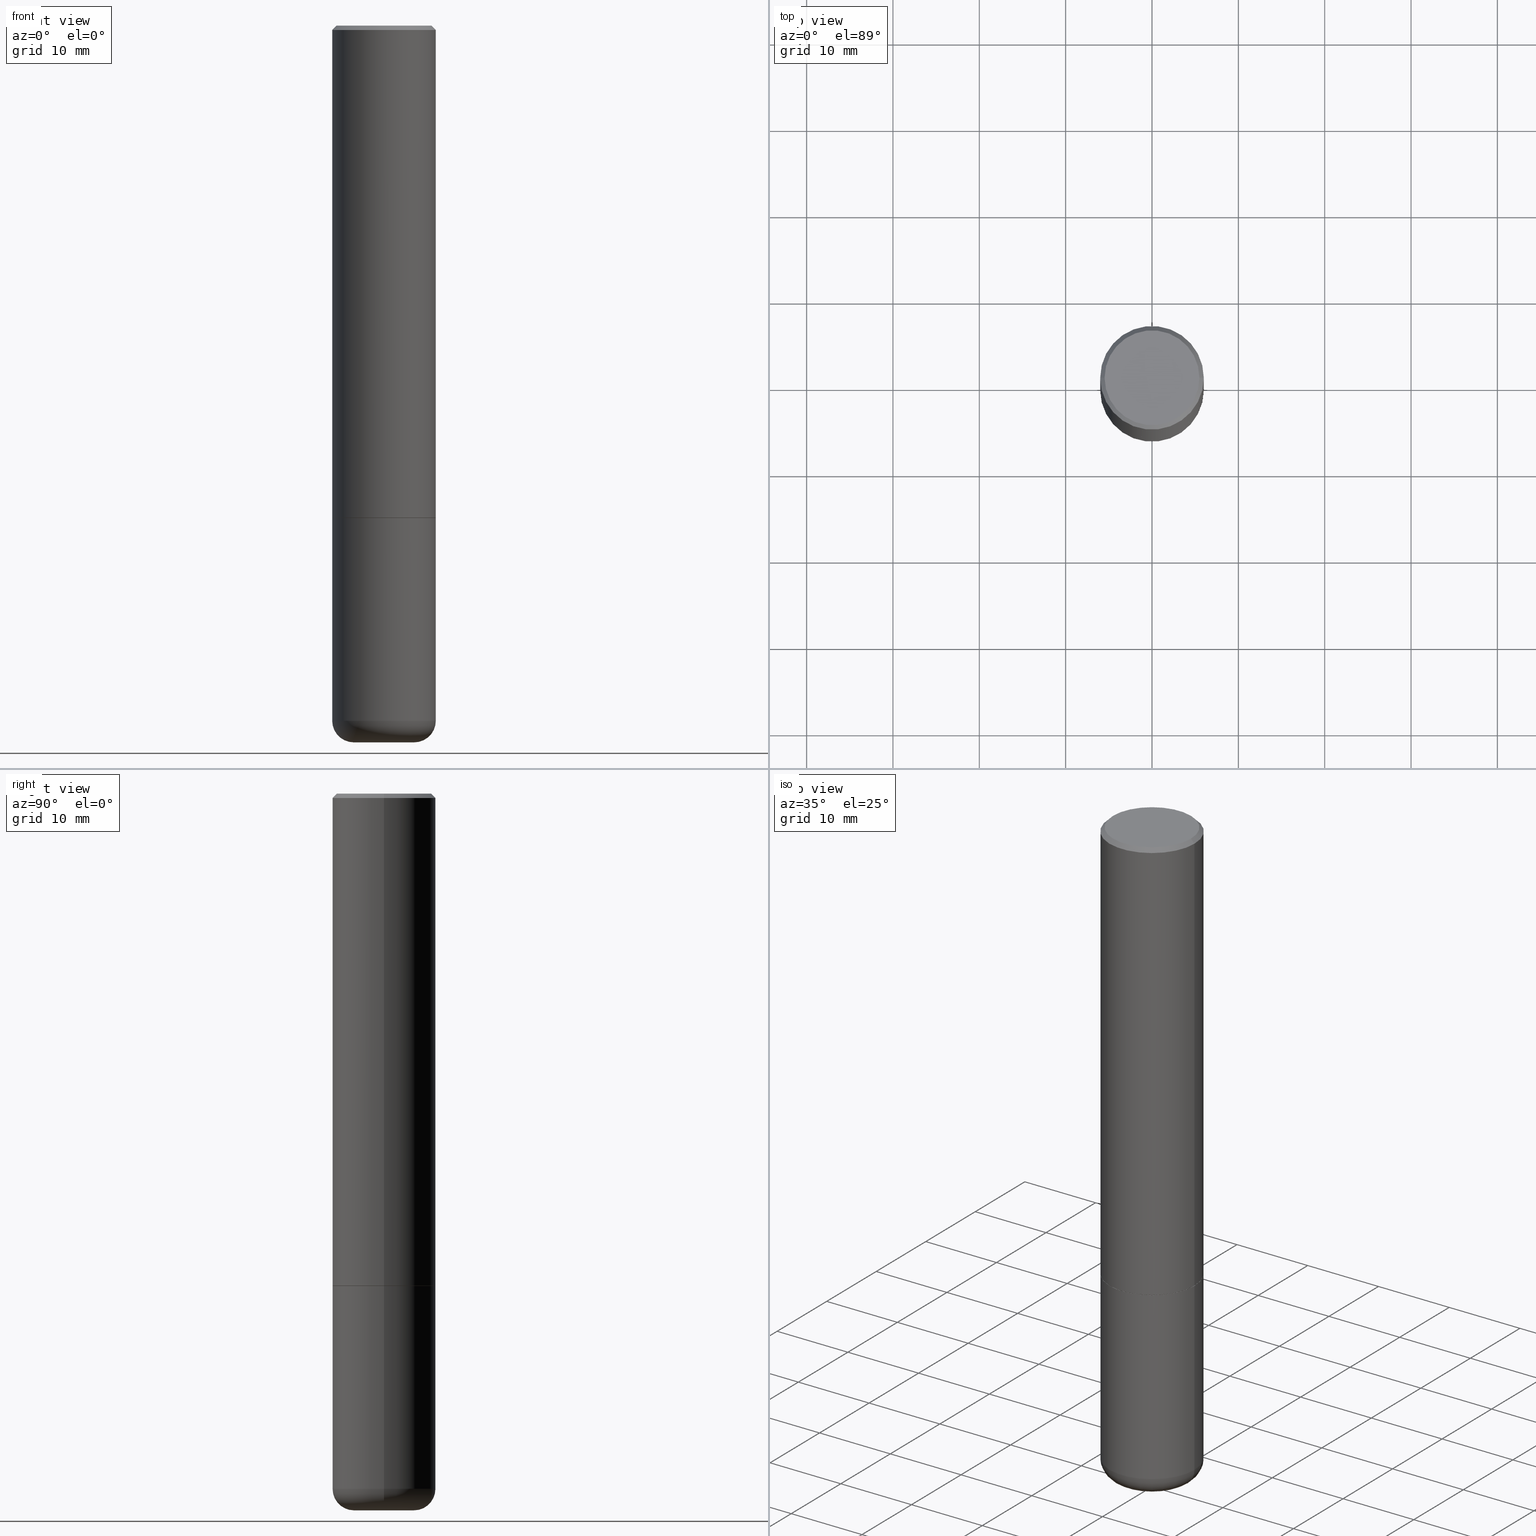
[diagram: canonical four-view strip — front | top / right | iso, engineering-drawing reading convention]
A machine part, canonical four-view strip (front | top / right | iso — engineering-drawing reading convention). The complete STEP part file that produces these views, byte-faithful:
ISO-10303-21;
HEADER;
FILE_DESCRIPTION (( 'STEP AP203' ),
    '1' );
FILE_NAME ('47022.STEP',
    '2024-03-05T12:10:26',
    ( '' ),
    ( '' ),
    'SwSTEP 2.0',
    'SolidWorks 2023',
    '' );
FILE_SCHEMA (( 'CONFIG_CONTROL_DESIGN' ));
ENDSEC;

DATA;
#1 = CLOSED_SHELL ( 'NONE', ( #223, #403, #206, #256, #60, #384, #265, #82 ) ) ;
#2 = CARTESIAN_POINT ( 'NONE',  ( -0.2351999999999999924, -6.158738303641923763E-15, -2.244099999999999984 ) ) ;
#3 = AXIS2_PLACEMENT_3D ( 'NONE', #93, #347, #292 ) ;
#4 = FACE_OUTER_BOUND ( 'NONE', #275, .T. ) ;
#5 = DIRECTION ( 'NONE',  ( -1.000000000000000000, 7.105427357601009747E-15, 0.000000000000000000 ) ) ;
#6 = EDGE_CURVE ( 'NONE', #20, #370, #293, .T. ) ;
#7 = FACE_OUTER_BOUND ( 'NONE', #298, .T. ) ;
#8 = CARTESIAN_POINT ( 'NONE',  ( 0.2161999999999998368, -1.586759460484351002E-15, 1.451294246634248118E-16 ) ) ;
#9 = ORIENTED_EDGE ( 'NONE', *, *, #218, .T. ) ;
#10 = AXIS2_PLACEMENT_3D ( 'NONE', #132, #353, #321 ) ;
#11 = LOCAL_TIME ( 7, 10, 26.00000000000000000, #192 ) ;
#12 = DIRECTION ( 'NONE',  ( 2.438088387897960049E-29, -3.491481338843145188E-15, -1.000000000000000000 ) ) ;
#13 = APPLICATION_CONTEXT ( 'configuration controlled 3d designs of mechanical parts and assemblies' ) ;
#14 = PLANE ( 'NONE',  #103 ) ;
#15 = ORIENTED_EDGE ( 'NONE', *, *, #279, .T. ) ;
#16 = CARTESIAN_POINT ( 'NONE',  ( 5.487876547960065873E-29, -7.835233272497903917E-15, -2.244100000000000428 ) ) ;
#17 = EDGE_LOOP ( 'NONE', ( #309, #172, #205, #86 ) ) ;
#18 = CONICAL_SURFACE ( 'NONE', #234, 0.2351999999999999924, 0.7853981633976873100 ) ;
#19 =( NAMED_UNIT ( * ) SI_UNIT ( $, .STERADIAN. ) SOLID_ANGLE_UNIT ( ) );
#20 = VERTEX_POINT ( 'NONE', #84 ) ;
#21 = COORDINATED_UNIVERSAL_TIME_OFFSET ( 5, 0, .BEHIND. ) ;
#22 = ORIENTED_EDGE ( 'NONE', *, *, #331, .F. ) ;
#23 = DATE_AND_TIME ( #306, #58 ) ;
#24 = DIRECTION ( 'NONE',  ( -2.445468806185136597E-29, 3.491481338843145583E-15, 1.000000000000000000 ) ) ;
#25 = PRODUCT ( '47022', '47022', '', ( #148 ) ) ;
#26 = VECTOR ( 'NONE', #316, 39.37007874015748143 ) ;
#27 = EDGE_CURVE ( 'NONE', #37, #336, #387, .T. ) ;
#28 = CARTESIAN_POINT ( 'NONE',  ( 4.890937612370285420E-31, -6.982962677686308865E-17, -0.02000000000000005246 ) ) ;
#29 = APPROVAL ( #409, 'UNSPECIFIED' ) ;
#30 = CONICAL_SURFACE ( 'NONE', #400, 0.2361999999999999933, 0.7853981633974473908 ) ;
#31 = DIRECTION ( 'NONE',  ( 1.000000000000000000, -6.982962677686266711E-15, 4.876176775795936353E-29 ) ) ;
#32 = LINE ( 'NONE', #94, #129 ) ;
#33 = DIRECTION ( 'NONE',  ( -1.000000000000000000, 6.982962677686266711E-15, 0.000000000000000000 ) ) ;
#34 = EDGE_CURVE ( 'NONE', #76, #248, #207, .T. ) ;
#35 = CARTESIAN_POINT ( 'NONE',  ( 5.487876547960065873E-29, -7.835233272497903917E-15, -2.244100000000000428 ) ) ;
#36 = VECTOR ( 'NONE', #229, 39.37007874015748143 ) ;
#37 = VERTEX_POINT ( 'NONE', #411 ) ;
#38 = DIRECTION ( 'NONE',  ( -1.000000000000000000, 6.982962677686265922E-15, -4.876176775795935793E-29 ) ) ;
#39 = ORIENTED_EDGE ( 'NONE', *, *, #34, .T. ) ;
#40 = PLANE ( 'NONE',  #356 ) ;
#41 = EDGE_CURVE ( 'NONE', #370, #20, #268, .T. ) ;
#42 = CARTESIAN_POINT ( 'NONE',  ( -0.1378000000000000058, -9.908617773195273284E-15, -3.267700000000000937 ) ) ;
#43 = ORIENTED_EDGE ( 'NONE', *, *, #34, .F. ) ;
#44 = AXIS2_PLACEMENT_3D ( 'NONE', #224, #232, #197 ) ;
#45 = CYLINDRICAL_SURFACE ( 'NONE', #215, 0.2362000000000001321 ) ;
#46 = ORIENTED_EDGE ( 'NONE', *, *, #346, .F. ) ;
#47 = CARTESIAN_POINT ( 'NONE',  ( -3.549094808739746881E-45, 5.067166779293519988E-31, 1.451294246634139896E-16 ) ) ;
#48 = VERTEX_POINT ( 'NONE', #92 ) ;
#49 = PERSON_AND_ORGANIZATION_ROLE ( 'creator' ) ;
#50 = ORIENTED_EDGE ( 'NONE', *, *, #346, .T. ) ;
#51 = AXIS2_PLACEMENT_3D ( 'NONE', #235, #296, #200 ) ;
#52 =( NAMED_UNIT ( * ) PLANE_ANGLE_UNIT ( ) SI_UNIT ( $, .RADIAN. ) );
#53 = EDGE_LOOP ( 'NONE', ( #402, #149 ) ) ;
#54 = CARTESIAN_POINT ( 'NONE',  ( 7.991058417971172834E-29, -1.140911357093774960E-14, -3.267700000000000937 ) ) ;
#55 = DIRECTION ( 'NONE',  ( 1.000000000000000000, -6.982962677686266711E-15, 4.881916136609865378E-29 ) ) ;
#56 = PERSON_AND_ORGANIZATION ( #196, #357 ) ;
#57 = AXIS2_PLACEMENT_3D ( 'NONE', #210, #114, #202 ) ;
#58 = LOCAL_TIME ( 7, 10, 26.00000000000000000, #181 ) ;
#59 = DATE_AND_TIME ( #249, #287 ) ;
#60 = ADVANCED_FACE ( 'NONE', ( #4 ), #334, .T. ) ;
#61 = CC_DESIGN_PERSON_AND_ORGANIZATION_ASSIGNMENT ( #311, #49, ( #318 ) ) ;
#62 = DIRECTION ( 'NONE',  ( 7.105427357601001859E-15, 1.000000000000000000, -3.491481338843145583E-15 ) ) ;
#63 = CARTESIAN_POINT ( 'NONE',  ( -0.2361999999999999933, -7.772090597981385734E-15, -2.244100000000000428 ) ) ;
#64 = CIRCLE ( 'NONE', #380, 0.2351999999999999924 ) ;
#65 = DIRECTION ( 'NONE',  ( -2.445468806185136877E-29, 3.491481338843145188E-15, 1.000000000000000000 ) ) ;
#66 = CARTESIAN_POINT ( 'NONE',  ( 0.2361999999999999933, -1.690279253850498771E-15, -0.02000000000000005246 ) ) ;
#67 = ORIENTED_EDGE ( 'NONE', *, *, #399, .T. ) ;
#68 = EDGE_CURVE ( 'NONE', #37, #48, #283, .T. ) ;
#69 = DIRECTION ( 'NONE',  ( 2.445468806185136597E-29, -3.491481338843145583E-15, -1.000000000000000000 ) ) ;
#70 = VERTEX_POINT ( 'NONE', #320 ) ;
#71 = DIRECTION ( 'NONE',  ( 1.000000000000000000, -6.982962677686264344E-15, 0.000000000000000000 ) ) ;
#72 = AXIS2_PLACEMENT_3D ( 'NONE', #355, #300, #302 ) ;
#73 = APPROVAL_PERSON_ORGANIZATION ( #219, #189, #339 ) ;
#74 = FACE_OUTER_BOUND ( 'NONE', #17, .T. ) ;
#75 = CARTESIAN_POINT ( 'NONE',  ( 0.2351999999999999924, -9.477626094289712851E-15, -2.244099999999999984 ) ) ;
#76 = VERTEX_POINT ( 'NONE', #99 ) ;
#77 = FACE_OUTER_BOUND ( 'NONE', #307, .T. ) ;
#78 = ORIENTED_EDGE ( 'NONE', *, *, #220, .F. ) ;
#79 = AXIS2_PLACEMENT_3D ( 'NONE', #157, #295, #390 ) ;
#80 = CARTESIAN_POINT ( 'NONE',  ( 5.487876547960065873E-29, -7.835233272497903917E-15, -2.244100000000000428 ) ) ;
#81 = VERTEX_POINT ( 'NONE', #66 ) ;
#82 = ADVANCED_FACE ( 'NONE', ( #288 ), #313, .F. ) ;
#83 = APPLICATION_PROTOCOL_DEFINITION ( 'international standard', 'config_control_design', 1994, #153 ) ;
#84 = CARTESIAN_POINT ( 'NONE',  ( 0.1378000000000000058, -1.237136582792291707E-14, -3.267700000000000937 ) ) ;
#85 = COORDINATED_UNIVERSAL_TIME_OFFSET ( 5, 0, .BEHIND. ) ;
#86 = ORIENTED_EDGE ( 'NONE', *, *, #199, .T. ) ;
#87 = EDGE_LOOP ( 'NONE', ( #15, #119, #281, #46 ) ) ;
#88 = EDGE_CURVE ( 'NONE', #76, #146, #155, .T. ) ;
#89 = DATE_AND_TIME ( #344, #255 ) ;
#90 = PERSON_AND_ORGANIZATION ( #196, #357 ) ;
#91 = CIRCLE ( 'NONE', #10, 0.09840000000000040381 ) ;
#92 = CARTESIAN_POINT ( 'NONE',  ( -0.2361999999999999933, 1.579546157692633030E-15, -0.02000000000000005246 ) ) ;
#93 = CARTESIAN_POINT ( 'NONE',  ( 5.487876547960064752E-29, -7.835233272497902340E-15, -2.244099999999999984 ) ) ;
#94 = CARTESIAN_POINT ( 'NONE',  ( 0.2362000000000001321, -1.649375784469497117E-15, 1.151752954443000789E-29 ) ) ;
#95 = AXIS2_PLACEMENT_3D ( 'NONE', #54, #100, #113 ) ;
#96 = CYLINDRICAL_SURFACE ( 'NONE', #79, 0.2361999999999999933 ) ;
#97 = EDGE_CURVE ( 'NONE', #354, #81, #32, .T. ) ;
#98 = CYLINDRICAL_SURFACE ( 'NONE', #168, 0.2361999999999999933 ) ;
#99 = CARTESIAN_POINT ( 'NONE',  ( 0.2362000000000002153, -1.271492759166507844E-14, -3.169299999999999784 ) ) ;
#100 = DIRECTION ( 'NONE',  ( -2.445468806185136597E-29, 3.491481338843145583E-15, 1.000000000000000000 ) ) ;
#101 = EDGE_CURVE ( 'NONE', #248, #209, #322, .T. ) ;
#102 = CARTESIAN_POINT ( 'NONE',  ( 4.890937612370285420E-31, -6.982962677686308865E-17, -0.02000000000000005246 ) ) ;
#103 = AXIS2_PLACEMENT_3D ( 'NONE', #324, #12, #38 ) ;
#104 =( GEOMETRIC_REPRESENTATION_CONTEXT ( 3 ) GLOBAL_UNCERTAINTY_ASSIGNED_CONTEXT ( ( #154 ) ) GLOBAL_UNIT_ASSIGNED_CONTEXT ( ( #175, #52, #19 ) ) REPRESENTATION_CONTEXT ( 'NONE', 'WORKASPACE' ) );
#105 = DIMENSIONAL_EXPONENTS ( 1.000000000000000000, 0.000000000000000000, 0.000000000000000000, 0.000000000000000000, 0.000000000000000000, 0.000000000000000000, 0.000000000000000000 ) ;
#106 = DIRECTION ( 'NONE',  ( 0.7071067811867165487, -2.468850131084027659E-15, 0.7071067811863784858 ) ) ;
#107 = EDGE_LOOP ( 'NONE', ( #212, #251 ) ) ;
#108 = DIRECTION ( 'NONE',  ( -2.445468806185136597E-29, 3.491481338843145583E-15, 1.000000000000000000 ) ) ;
#109 = DIRECTION ( 'NONE',  ( 1.000000000000000000, -6.982962677686264344E-15, 0.000000000000000000 ) ) ;
#110 = DIRECTION ( 'NONE',  ( 1.000000000000000000, -6.982962677686266711E-15, 4.876176775795936353E-29 ) ) ;
#111 = ORIENTED_EDGE ( 'NONE', *, *, #97, .F. ) ;
#112 = ADVANCED_FACE ( 'NONE', ( #383 ), #131, .F. ) ;
#113 = DIRECTION ( 'NONE',  ( 1.000000000000000000, -6.982962677686265922E-15, 0.000000000000000000 ) ) ;
#114 = DIRECTION ( 'NONE',  ( -2.445468806185136597E-29, 3.491481338843145583E-15, 1.000000000000000000 ) ) ;
#115 = CARTESIAN_POINT ( 'NONE',  ( 7.991058417971172834E-29, -1.140911357093774960E-14, -3.267700000000000937 ) ) ;
#116 = APPROVAL_STATUS ( 'not_yet_approved' ) ;
#117 = DIRECTION ( 'NONE',  ( -2.445468806185136597E-29, 3.491481338843145583E-15, 1.000000000000000000 ) ) ;
#118 = DATE_AND_TIME ( #343, #191 ) ;
#119 = ORIENTED_EDGE ( 'NONE', *, *, #331, .T. ) ;
#120 = VECTOR ( 'NONE', #65, 39.37007874015748143 ) ;
#121 = PERSON_AND_ORGANIZATION ( #196, #357 ) ;
#122 = PERSON_AND_ORGANIZATION ( #196, #357 ) ;
#123 = CC_DESIGN_PERSON_AND_ORGANIZATION_ASSIGNMENT ( #56, #282, ( #144 ) ) ;
#124 = CIRCLE ( 'NONE', #338, 0.2361999999999999933 ) ;
#125 = DIRECTION ( 'NONE',  ( -2.445468806185136597E-29, 3.491481338843145583E-15, 1.000000000000000000 ) ) ;
#126 = CARTESIAN_POINT ( 'NONE',  ( 0.2361999999999999933, -9.484609056967400443E-15, -2.244100000000000428 ) ) ;
#127 = ADVANCED_FACE ( 'NONE', ( #388 ), #98, .T. ) ;
#128 = DIRECTION ( 'NONE',  ( -2.445468806185136877E-29, 3.491481338843145188E-15, 1.000000000000000000 ) ) ;
#129 = VECTOR ( 'NONE', #128, 39.37007874015748143 ) ;
#130 = APPROVAL_ROLE ( '' ) ;
#131 = PLANE ( 'NONE',  #349 ) ;
#132 = CARTESIAN_POINT ( 'NONE',  ( 0.1378000000000000058, -1.202780406418074782E-14, -3.169299999999999784 ) ) ;
#133 = DIRECTION ( 'NONE',  ( -2.445468806185136597E-29, 3.491481338843145583E-15, 1.000000000000000000 ) ) ;
#134 = CARTESIAN_POINT ( 'NONE',  ( -0.2351999999999999924, -6.164036757990146954E-15, -2.244099999999999984 ) ) ;
#135 = CIRCLE ( 'NONE', #366, 0.2161999999999998368 ) ;
#136 = DIRECTION ( 'NONE',  ( -1.000000000000000000, 6.982962677686266711E-15, 0.000000000000000000 ) ) ;
#137 = CARTESIAN_POINT ( 'NONE',  ( 4.890937612370285420E-31, -6.982962677686308865E-17, -0.02000000000000005246 ) ) ;
#138 = MANIFOLD_SOLID_BREP ( 'Body-Move/Copy2[1]', #285 ) ;
#139 = DIRECTION ( 'NONE',  ( 1.000000000000000000, -6.982962677686266711E-15, 4.881916136609865378E-29 ) ) ;
#140 = EDGE_CURVE ( 'NONE', #354, #404, #273, .T. ) ;
#141 = ORIENTED_EDGE ( 'NONE', *, *, #101, .T. ) ;
#142 = FACE_OUTER_BOUND ( 'NONE', #245, .T. ) ;
#143 = ORIENTED_EDGE ( 'NONE', *, *, #6, .T. ) ;
#144 = SECURITY_CLASSIFICATION ( '', '', #252 ) ;
#145 = CARTESIAN_POINT ( 'NONE',  ( -0.2362000000000002986, -2.272483767102600582E-15, -2.243100000000000094 ) ) ;
#146 = VERTEX_POINT ( 'NONE', #126 ) ;
#147 = EDGE_LOOP ( 'NONE', ( #214, #278, #361, #368 ) ) ;
#148 = MECHANICAL_CONTEXT ( 'NONE', #13, 'mechanical' ) ;
#149 = ORIENTED_EDGE ( 'NONE', *, *, #314, .T. ) ;
#150 = APPROVAL_ROLE ( '' ) ;
#151 = PERSON_AND_ORGANIZATION_ROLE ( 'design_supplier' ) ;
#152 = APPROVAL ( #312, 'UNSPECIFIED' ) ;
#153 = APPLICATION_CONTEXT ( 'configuration controlled 3d designs of mechanical parts and assemblies' ) ;
#154 = UNCERTAINTY_MEASURE_WITH_UNIT (LENGTH_MEASURE( 1.000000000000000082E-05 ), #175, 'distance_accuracy_value', 'NONE');
#155 = LINE ( 'NONE', #262, #36 ) ;
#156 = AXIS2_PLACEMENT_3D ( 'NONE', #115, #217, #342 ) ;
#157 = CARTESIAN_POINT ( 'NONE',  ( 0.000000000000000000, 0.000000000000000000, 0.000000000000000000 ) ) ;
#158 = DIRECTION ( 'NONE',  ( 2.438088387897960049E-29, -3.491481338843145188E-15, -1.000000000000000000 ) ) ;
#159 = DIRECTION ( 'NONE',  ( 1.000000000000000000, -6.982962677686268288E-15, 0.000000000000000000 ) ) ;
#160 = PRODUCT_DEFINITION_SHAPE ( 'NONE', 'NONE',  #325 ) ;
#161 = TOROIDAL_SURFACE ( 'NONE', #72, 0.1378000000000000058, 0.09840000000000040381 ) ;
#162 = CARTESIAN_POINT ( 'NONE',  ( 0.000000000000000000, 0.000000000000000000, 0.000000000000000000 ) ) ;
#163 = ORIENTED_EDGE ( 'NONE', *, *, #337, .F. ) ;
#164 = LINE ( 'NONE', #134, #317 ) ;
#165 = ORIENTED_EDGE ( 'NONE', *, *, #6, .F. ) ;
#166 = PRODUCT_RELATED_PRODUCT_CATEGORY ( 'detail', '', ( #25 ) ) ;
#167 = FACE_OUTER_BOUND ( 'NONE', #373, .T. ) ;
#168 = AXIS2_PLACEMENT_3D ( 'NONE', #162, #290, #31 ) ;
#169 = CARTESIAN_POINT ( 'NONE',  ( 5.487876547960064752E-29, -7.835233272497902340E-15, -2.244099999999999984 ) ) ;
#170 = EDGE_LOOP ( 'NONE', ( #22, #198, #50, #330 ) ) ;
#171 = CARTESIAN_POINT ( 'NONE',  ( 0.000000000000000000, 0.000000000000000000, 0.000000000000000000 ) ) ;
#172 = ORIENTED_EDGE ( 'NONE', *, *, #27, .F. ) ;
#173 = LINE ( 'NONE', #274, #254 ) ;
#174 = ORIENTED_EDGE ( 'NONE', *, *, #97, .T. ) ;
#175 =( CONVERSION_BASED_UNIT ( 'INCH', #375 ) LENGTH_UNIT ( ) NAMED_UNIT ( #105 ) );
#176 = ORIENTED_EDGE ( 'NONE', *, *, #203, .T. ) ;
#177 = CIRCLE ( 'NONE', #51, 0.2351999999999999924 ) ;
#178 = ADVANCED_FACE ( 'NONE', ( #225 ), #96, .T. ) ;
#179 = APPROVAL_PERSON_ORGANIZATION ( #378, #29, #150 ) ;
#180 = EDGE_LOOP ( 'NONE', ( #143, #389, #43, #341 ) ) ;
#181 = COORDINATED_UNIVERSAL_TIME_OFFSET ( 5, 0, .BEHIND. ) ;
#182 = CARTESIAN_POINT ( 'NONE',  ( 7.750424287442554569E-29, -1.106555180719558034E-14, -3.169299999999999784 ) ) ;
#183 = CONICAL_SURFACE ( 'NONE', #3, 0.2351999999999999924, 0.7853981633976873100 ) ;
#184 = APPROVAL_PERSON_ORGANIZATION ( #122, #152, #130 ) ;
#185 = EDGE_CURVE ( 'NONE', #20, #76, #91, .T. ) ;
#186 = DIRECTION ( 'NONE',  ( -2.445468806185136597E-29, 3.491481338843145583E-15, 1.000000000000000000 ) ) ;
#187 = EDGE_CURVE ( 'NONE', #370, #248, #323, .T. ) ;
#188 = DIRECTION ( 'NONE',  ( -1.000000000000000000, 6.982962677686265922E-15, -4.876176775795935793E-29 ) ) ;
#189 = APPROVAL ( #116, 'UNSPECIFIED' ) ;
#190 = CONICAL_SURFACE ( 'NONE', #365, 0.2361999999999999933, 0.7853981633974473908 ) ;
#191 = LOCAL_TIME ( 7, 10, 26.00000000000000000, #21 ) ;
#192 = COORDINATED_UNIVERSAL_TIME_OFFSET ( 5, 0, .BEHIND. ) ;
#193 = CARTESIAN_POINT ( 'NONE',  ( 5.485431079153880270E-29, -7.831741791159060910E-15, -2.243100000000000094 ) ) ;
#194 = DATE_AND_TIME ( #259, #11 ) ;
#195 = CARTESIAN_POINT ( 'NONE',  ( 4.890937612370285420E-31, -6.982962677686308865E-17, -0.02000000000000005246 ) ) ;
#196 = PERSON ( 'UNSPECIFIED', 'UNSPECIFIED', 'UNSPECIFIED', ('UNSPECIFIED'), ('UNSPECIFIED'), ('UNSPECIFIED') ) ;
#197 = DIRECTION ( 'NONE',  ( -1.000000000000000000, 6.982962677686265922E-15, -4.876176775795935793E-29 ) ) ;
#198 = ORIENTED_EDGE ( 'NONE', *, *, #220, .T. ) ;
#199 = EDGE_CURVE ( 'NONE', #48, #81, #124, .T. ) ;
#200 = DIRECTION ( 'NONE',  ( 1.000000000000000000, -6.982962677686268288E-15, 0.000000000000000000 ) ) ;
#201 = ORIENTED_EDGE ( 'NONE', *, *, #140, .T. ) ;
#202 = DIRECTION ( 'NONE',  ( 1.000000000000000000, -6.982962677686269077E-15, 4.883557194083113462E-29 ) ) ;
#203 = EDGE_CURVE ( 'NONE', #404, #48, #414, .T. ) ;
#204 = CARTESIAN_POINT ( 'NONE',  ( 0.2362000000000002709, -9.481117575628559013E-15, -2.243100000000000094 ) ) ;
#205 = ORIENTED_EDGE ( 'NONE', *, *, #68, .T. ) ;
#206 = ADVANCED_FACE ( 'NONE', ( #348 ), #190, .T. ) ;
#207 = CIRCLE ( 'NONE', #221, 0.2362000000000000210 ) ;
#208 = DIRECTION ( 'NONE',  ( -2.445468806185136597E-29, 3.491481338843145583E-15, 1.000000000000000000 ) ) ;
#209 = VERTEX_POINT ( 'NONE', #63 ) ;
#210 = CARTESIAN_POINT ( 'NONE',  ( 7.750424287442554569E-29, -1.106555180719558034E-14, -3.169299999999999784 ) ) ;
#211 = PERSON_AND_ORGANIZATION ( #196, #357 ) ;
#212 = ORIENTED_EDGE ( 'NONE', *, *, #27, .T. ) ;
#213 = AXIS2_PLACEMENT_3D ( 'NONE', #80, #359, #297 ) ;
#214 = ORIENTED_EDGE ( 'NONE', *, *, #101, .F. ) ;
#215 = AXIS2_PLACEMENT_3D ( 'NONE', #171, #397, #110 ) ;
#216 =( LENGTH_UNIT ( ) NAMED_UNIT ( * ) SI_UNIT ( $, .METRE. ) );
#217 = DIRECTION ( 'NONE',  ( -2.445468806185136597E-29, 3.491481338843145583E-15, 1.000000000000000000 ) ) ;
#218 = EDGE_CURVE ( 'NONE', #404, #354, #250, .T. ) ;
#219 = PERSON_AND_ORGANIZATION ( #196, #357 ) ;
#220 = EDGE_CURVE ( 'NONE', #230, #70, #64, .T. ) ;
#221 = AXIS2_PLACEMENT_3D ( 'NONE', #182, #24, #109 ) ;
#222 = CC_DESIGN_APPROVAL ( #189, ( #318 ) ) ;
#223 = ADVANCED_FACE ( 'NONE', ( #257 ), #183, .T. ) ;
#224 = CARTESIAN_POINT ( 'NONE',  ( 1.509716530915769534E-15, 0.2161999999999998368, -6.822935531261805704E-16 ) ) ;
#225 = FACE_OUTER_BOUND ( 'NONE', #406, .T. ) ;
#226 = AXIS2_PLACEMENT_3D ( 'NONE', #193, #386, #228 ) ;
#227 = CC_DESIGN_SECURITY_CLASSIFICATION ( #144, ( #318 ) ) ;
#228 = DIRECTION ( 'NONE',  ( 1.000000000000000000, -6.982962677686269077E-15, 0.000000000000000000 ) ) ;
#229 = DIRECTION ( 'NONE',  ( -2.445468806185136877E-29, 3.491481338843145188E-15, 1.000000000000000000 ) ) ;
#230 = VERTEX_POINT ( 'NONE', #2 ) ;
#231 = EDGE_CURVE ( 'NONE', #336, #81, #173, .T. ) ;
#232 = DIRECTION ( 'NONE',  ( 2.438088387897960049E-29, -3.491481338843145188E-15, -1.000000000000000000 ) ) ;
#233 = CIRCLE ( 'NONE', #286, 0.2361999999999999933 ) ;
#234 = AXIS2_PLACEMENT_3D ( 'NONE', #169, #108, #238 ) ;
#235 = CARTESIAN_POINT ( 'NONE',  ( 5.487876547960064752E-29, -7.835233272497902340E-15, -2.244099999999999984 ) ) ;
#236 = ORIENTED_EDGE ( 'NONE', *, *, #291, .F. ) ;
#237 = CARTESIAN_POINT ( 'NONE',  ( 5.487876547960065873E-29, -7.835233272497903917E-15, -2.244100000000000428 ) ) ;
#238 = DIRECTION ( 'NONE',  ( 1.000000000000000000, -6.982962677686268288E-15, 0.000000000000000000 ) ) ;
#239 = ORIENTED_EDGE ( 'NONE', *, *, #199, .F. ) ;
#240 = TOROIDAL_SURFACE ( 'NONE', #57, 0.1378000000000000058, 0.09840000000000040381 ) ;
#241 = CARTESIAN_POINT ( 'NONE',  ( 7.750424287442554569E-29, -1.106555180719558034E-14, -3.169299999999999784 ) ) ;
#242 = AXIS2_PLACEMENT_3D ( 'NONE', #137, #396, #362 ) ;
#243 = ORIENTED_EDGE ( 'NONE', *, *, #187, .F. ) ;
#244 = DATE_TIME_ROLE ( 'creation_date' ) ;
#245 = EDGE_LOOP ( 'NONE', ( #243, #267, #305, #303 ) ) ;
#246 = ADVANCED_FACE ( 'NONE', ( #327 ), #240, .T. ) ;
#247 = PERSON_AND_ORGANIZATION_ROLE ( 'design_owner' ) ;
#248 = VERTEX_POINT ( 'NONE', #329 ) ;
#249 = CALENDAR_DATE ( 2024, 5, 3 ) ;
#250 = CIRCLE ( 'NONE', #226, 0.2362000000000002709 ) ;
#251 = ORIENTED_EDGE ( 'NONE', *, *, #337, .T. ) ;
#252 = SECURITY_CLASSIFICATION_LEVEL ( 'unclassified' ) ;
#253 = EDGE_CURVE ( 'NONE', #248, #76, #345, .T. ) ;
#254 = VECTOR ( 'NONE', #266, 39.37007874015748143 ) ;
#255 = LOCAL_TIME ( 7, 10, 26.00000000000000000, #413 ) ;
#256 = ADVANCED_FACE ( 'NONE', ( #74 ), #30, .T. ) ;
#257 = FACE_OUTER_BOUND ( 'NONE', #87, .T. ) ;
#258 = CARTESIAN_POINT ( 'NONE',  ( 0.000000000000000000, 0.000000000000000000, 0.000000000000000000 ) ) ;
#259 = CALENDAR_DATE ( 2024, 5, 3 ) ;
#260 = CARTESIAN_POINT ( 'NONE',  ( -0.1378000000000000058, -1.008642391731816283E-14, -3.169299999999999784 ) ) ;
#261 = DIRECTION ( 'NONE',  ( -2.445468806185136597E-29, 3.491481338843145583E-15, 1.000000000000000000 ) ) ;
#262 = CARTESIAN_POINT ( 'NONE',  ( 0.2361999999999999933, -1.649375784469496131E-15, 1.151752954443000088E-29 ) ) ;
#263 = ADVANCED_FACE ( 'NONE', ( #142 ), #161, .T. ) ;
#264 = CARTESIAN_POINT ( 'NONE',  ( -0.2361999999999999933, 1.678301941865356591E-15, -1.161852468318208757E-29 ) ) ;
#265 = ADVANCED_FACE ( 'NONE', ( #7 ), #40, .F. ) ;
#266 = DIRECTION ( 'NONE',  ( 0.7071067811865469066, -7.319954787623254468E-15, -0.7071067811865481278 ) ) ;
#267 = ORIENTED_EDGE ( 'NONE', *, *, #41, .T. ) ;
#268 = CIRCLE ( 'NONE', #95, 0.1378000000000000058 ) ;
#269 = DIRECTION ( 'NONE',  ( -2.445468806185136597E-29, 3.491481338843145583E-15, 1.000000000000000000 ) ) ;
#270 = FACE_OUTER_BOUND ( 'NONE', #170, .T. ) ;
#271 = ORIENTED_EDGE ( 'NONE', *, *, #279, .F. ) ;
#272 = ORIENTED_EDGE ( 'NONE', *, *, #68, .F. ) ;
#273 = CIRCLE ( 'NONE', #328, 0.2362000000000002709 ) ;
#274 = CARTESIAN_POINT ( 'NONE',  ( 0.2361999999999999933, -1.690279253850498771E-15, -0.02000000000000005246 ) ) ;
#275 = EDGE_LOOP ( 'NONE', ( #333, #9, #174, #239 ) ) ;
#276 = APPROVAL_DATE_TIME ( #118, #189 ) ;
#277 = ORIENTED_EDGE ( 'NONE', *, *, #399, .F. ) ;
#278 = ORIENTED_EDGE ( 'NONE', *, *, #253, .T. ) ;
#279 = EDGE_CURVE ( 'NONE', #70, #230, #177, .T. ) ;
#280 = AXIS2_PLACEMENT_3D ( 'NONE', #258, #133, #360 ) ;
#281 = ORIENTED_EDGE ( 'NONE', *, *, #140, .F. ) ;
#282 = PERSON_AND_ORGANIZATION_ROLE ( 'classification_officer' ) ;
#283 = LINE ( 'NONE', #315, #294 ) ;
#284 = DIRECTION ( 'NONE',  ( 1.000000000000000000, -6.982962677686266711E-15, 0.000000000000000000 ) ) ;
#285 = CLOSED_SHELL ( 'NONE', ( #178, #246, #112, #127, #263, #304 ) ) ;
#286 = AXIS2_PLACEMENT_3D ( 'NONE', #237, #391, #358 ) ;
#287 = LOCAL_TIME ( 7, 10, 26.00000000000000000, #85 ) ;
#288 = FACE_OUTER_BOUND ( 'NONE', #107, .T. ) ;
#289 = SHAPE_DEFINITION_REPRESENTATION ( #160, #319 ) ;
#290 = DIRECTION ( 'NONE',  ( -2.445468806185136597E-29, 3.491481338843145583E-15, 1.000000000000000000 ) ) ;
#291 = EDGE_CURVE ( 'NONE', #146, #209, #233, .T. ) ;
#292 = DIRECTION ( 'NONE',  ( 1.000000000000000000, -6.982962677686268288E-15, 0.000000000000000000 ) ) ;
#293 = CIRCLE ( 'NONE', #156, 0.1378000000000000058 ) ;
#294 = VECTOR ( 'NONE', #394, 39.37007874015748143 ) ;
#295 = DIRECTION ( 'NONE',  ( -2.445468806185136597E-29, 3.491481338843145583E-15, 1.000000000000000000 ) ) ;
#296 = DIRECTION ( 'NONE',  ( -2.445468806185136597E-29, 3.491481338843145583E-15, 1.000000000000000000 ) ) ;
#297 = DIRECTION ( 'NONE',  ( 1.000000000000000000, -6.982962677686269077E-15, 0.000000000000000000 ) ) ;
#298 = EDGE_LOOP ( 'NONE', ( #271, #78 ) ) ;
#299 = VECTOR ( 'NONE', #106, 39.37007874015748143 ) ;
#300 = DIRECTION ( 'NONE',  ( -2.445468806185136597E-29, 3.491481338843145583E-15, 1.000000000000000000 ) ) ;
#301 = ORIENTED_EDGE ( 'NONE', *, *, #88, .F. ) ;
#302 = DIRECTION ( 'NONE',  ( 1.000000000000000000, -6.982962677686269077E-15, 4.883557194083113462E-29 ) ) ;
#303 = ORIENTED_EDGE ( 'NONE', *, *, #253, .F. ) ;
#304 = ADVANCED_FACE ( 'NONE', ( #167 ), #14, .T. ) ;
#305 = ORIENTED_EDGE ( 'NONE', *, *, #185, .T. ) ;
#306 = CALENDAR_DATE ( 2024, 5, 3 ) ;
#307 = EDGE_LOOP ( 'NONE', ( #201, #176, #277, #111 ) ) ;
#308 = ORIENTED_EDGE ( 'NONE', *, *, #41, .F. ) ;
#309 = ORIENTED_EDGE ( 'NONE', *, *, #231, .F. ) ;
#310 = APPROVAL_DATE_TIME ( #23, #29 ) ;
#311 = PERSON_AND_ORGANIZATION ( #196, #357 ) ;
#312 = APPROVAL_STATUS ( 'not_yet_approved' ) ;
#313 = PLANE ( 'NONE',  #44 ) ;
#314 = EDGE_CURVE ( 'NONE', #209, #146, #393, .T. ) ;
#315 = CARTESIAN_POINT ( 'NONE',  ( -0.2361999999999999933, 1.579546157692633030E-15, -0.02000000000000005246 ) ) ;
#316 = DIRECTION ( 'NONE',  ( -2.445468806185136877E-29, 3.491481338843145188E-15, 1.000000000000000000 ) ) ;
#317 = VECTOR ( 'NONE', #332, 39.37007874015748143 ) ;
#318 = PRODUCT_DEFINITION_FORMATION_WITH_SPECIFIED_SOURCE ( 'ANY', '', #25, .NOT_KNOWN. ) ;
#319 = ADVANCED_BREP_SHAPE_REPRESENTATION ( '47022', ( #138, #416, #340 ), #104 ) ;
#320 = CARTESIAN_POINT ( 'NONE',  ( 0.2351999999999999924, -9.477626094289712851E-15, -2.244099999999999984 ) ) ;
#321 = DIRECTION ( 'NONE',  ( 1.000000000000000000, -6.982962677686272233E-15, 0.000000000000000000 ) ) ;
#322 = LINE ( 'NONE', #264, #26 ) ;
#323 = CIRCLE ( 'NONE', #407, 0.09840000000000040381 ) ;
#324 = CARTESIAN_POINT ( 'NONE',  ( -1.056246086601801167E-29, -2.436536856207956870E-14, -3.267700000000000937 ) ) ;
#325 = PRODUCT_DEFINITION ( 'UNKNOWN', '', #318, #350 ) ;
#326 = DIRECTION ( 'NONE',  ( 2.445468806185136597E-29, -3.491481338843145583E-15, -1.000000000000000000 ) ) ;
#327 = FACE_OUTER_BOUND ( 'NONE', #180, .T. ) ;
#328 = AXIS2_PLACEMENT_3D ( 'NONE', #418, #261, #417 ) ;
#329 = CARTESIAN_POINT ( 'NONE',  ( -0.2362000000000002153, -9.387249865330223945E-15, -3.169299999999999784 ) ) ;
#330 = ORIENTED_EDGE ( 'NONE', *, *, #218, .F. ) ;
#331 = EDGE_CURVE ( 'NONE', #230, #404, #164, .T. ) ;
#332 = DIRECTION ( 'NONE',  ( -0.7071067811867165487, 7.493145998870964739E-15, 0.7071067811863784858 ) ) ;
#333 = ORIENTED_EDGE ( 'NONE', *, *, #203, .F. ) ;
#334 = CYLINDRICAL_SURFACE ( 'NONE', #280, 0.2362000000000001321 ) ;
#335 = DIRECTION ( 'NONE',  ( 0.000000000000000000, 0.000000000000000000, 1.000000000000000000 ) ) ;
#336 = VERTEX_POINT ( 'NONE', #8 ) ;
#337 = EDGE_CURVE ( 'NONE', #336, #37, #135, .T. ) ;
#338 = AXIS2_PLACEMENT_3D ( 'NONE', #28, #186, #284 ) ;
#339 = APPROVAL_ROLE ( '' ) ;
#340 = AXIS2_PLACEMENT_3D ( 'NONE', #369, #335, #405 ) ;
#341 = ORIENTED_EDGE ( 'NONE', *, *, #185, .F. ) ;
#342 = DIRECTION ( 'NONE',  ( 1.000000000000000000, -6.982962677686265922E-15, 0.000000000000000000 ) ) ;
#343 = CALENDAR_DATE ( 2024, 5, 3 ) ;
#344 = CALENDAR_DATE ( 2024, 5, 3 ) ;
#345 = CIRCLE ( 'NONE', #374, 0.2362000000000000210 ) ;
#346 = EDGE_CURVE ( 'NONE', #70, #354, #395, .T. ) ;
#347 = DIRECTION ( 'NONE',  ( -2.445468806185136597E-29, 3.491481338843145583E-15, 1.000000000000000000 ) ) ;
#348 = FACE_OUTER_BOUND ( 'NONE', #398, .T. ) ;
#349 = AXIS2_PLACEMENT_3D ( 'NONE', #35, #158, #188 ) ;
#350 = DESIGN_CONTEXT ( 'detailed design', #153, 'design' ) ;
#351 = CC_DESIGN_PERSON_AND_ORGANIZATION_ASSIGNMENT ( #90, #151, ( #318 ) ) ;
#352 = CARTESIAN_POINT ( 'NONE',  ( 5.487876547960064752E-29, -7.835233272497902340E-15, -2.244099999999999984 ) ) ;
#353 = DIRECTION ( 'NONE',  ( -6.982962677686266711E-15, -1.000000000000000000, 3.491481338843145583E-15 ) ) ;
#354 = VERTEX_POINT ( 'NONE', #204 ) ;
#355 = CARTESIAN_POINT ( 'NONE',  ( 7.750424287442554569E-29, -1.106555180719558034E-14, -3.169299999999999784 ) ) ;
#356 = AXIS2_PLACEMENT_3D ( 'NONE', #16, #401, #367 ) ;
#357 = ORGANIZATION ( 'UNSPECIFIED', 'UNSPECIFIED', '' ) ;
#358 = DIRECTION ( 'NONE',  ( 1.000000000000000000, -6.982962677686269077E-15, 0.000000000000000000 ) ) ;
#359 = DIRECTION ( 'NONE',  ( -2.445468806185136597E-29, 3.491481338843145583E-15, 1.000000000000000000 ) ) ;
#360 = DIRECTION ( 'NONE',  ( 1.000000000000000000, -6.982962677686266711E-15, 4.876176775795936353E-29 ) ) ;
#361 = ORIENTED_EDGE ( 'NONE', *, *, #88, .T. ) ;
#362 = DIRECTION ( 'NONE',  ( 1.000000000000000000, -6.982962677686266711E-15, 0.000000000000000000 ) ) ;
#363 = CARTESIAN_POINT ( 'NONE',  ( -3.549094808739746881E-45, 5.067166779293519988E-31, 1.451294246634139896E-16 ) ) ;
#364 = CC_DESIGN_DATE_AND_TIME_ASSIGNMENT ( #89, #244, ( #325 ) ) ;
#365 = AXIS2_PLACEMENT_3D ( 'NONE', #195, #69, #33 ) ;
#366 = AXIS2_PLACEMENT_3D ( 'NONE', #47, #269, #139 ) ;
#367 = DIRECTION ( 'NONE',  ( 1.000000000000000000, -6.982962677686265922E-15, 4.876176775795935793E-29 ) ) ;
#368 = ORIENTED_EDGE ( 'NONE', *, *, #314, .F. ) ;
#369 = CARTESIAN_POINT ( 'NONE',  ( 0.000000000000000000, 0.000000000000000000, 0.000000000000000000 ) ) ;
#370 = VERTEX_POINT ( 'NONE', #42 ) ;
#371 = CC_DESIGN_DATE_AND_TIME_ASSIGNMENT ( #59, #410, ( #144 ) ) ;
#372 = PERSON_AND_ORGANIZATION_ROLE ( 'creator' ) ;
#373 = EDGE_LOOP ( 'NONE', ( #165, #308 ) ) ;
#374 = AXIS2_PLACEMENT_3D ( 'NONE', #241, #208, #71 ) ;
#375 = LENGTH_MEASURE_WITH_UNIT ( LENGTH_MEASURE( 0.02539999999999999897 ), #216 );
#376 = ORIENTED_EDGE ( 'NONE', *, *, #231, .T. ) ;
#377 = APPLICATION_PROTOCOL_DEFINITION ( 'international standard', 'config_control_design', 1994, #13 ) ;
#378 = PERSON_AND_ORGANIZATION ( #196, #357 ) ;
#379 = CC_DESIGN_PERSON_AND_ORGANIZATION_ASSIGNMENT ( #121, #372, ( #325 ) ) ;
#380 = AXIS2_PLACEMENT_3D ( 'NONE', #352, #125, #159 ) ;
#381 = CIRCLE ( 'NONE', #242, 0.2361999999999999933 ) ;
#382 = APPROVAL_DATE_TIME ( #194, #152 ) ;
#383 = FACE_OUTER_BOUND ( 'NONE', #53, .T. ) ;
#384 = ADVANCED_FACE ( 'NONE', ( #270 ), #18, .T. ) ;
#385 = CARTESIAN_POINT ( 'NONE',  ( -0.2362000000000001321, 1.678301941865357577E-15, -1.161852468318209457E-29 ) ) ;
#386 = DIRECTION ( 'NONE',  ( -2.445468806185136597E-29, 3.491481338843145583E-15, 1.000000000000000000 ) ) ;
#387 = CIRCLE ( 'NONE', #392, 0.2161999999999998368 ) ;
#388 = FACE_OUTER_BOUND ( 'NONE', #147, .T. ) ;
#389 = ORIENTED_EDGE ( 'NONE', *, *, #187, .T. ) ;
#390 = DIRECTION ( 'NONE',  ( 1.000000000000000000, -6.982962677686266711E-15, 4.876176775795936353E-29 ) ) ;
#391 = DIRECTION ( 'NONE',  ( -2.445468806185136597E-29, 3.491481338843145583E-15, 1.000000000000000000 ) ) ;
#392 = AXIS2_PLACEMENT_3D ( 'NONE', #363, #117, #55 ) ;
#393 = CIRCLE ( 'NONE', #213, 0.2361999999999999933 ) ;
#394 = DIRECTION ( 'NONE',  ( -0.7071067811865469066, 2.468850131082250355E-15, -0.7071067811865481278 ) ) ;
#395 = LINE ( 'NONE', #75, #299 ) ;
#396 = DIRECTION ( 'NONE',  ( -2.445468806185136597E-29, 3.491481338843145583E-15, 1.000000000000000000 ) ) ;
#397 = DIRECTION ( 'NONE',  ( -2.445468806185136597E-29, 3.491481338843145583E-15, 1.000000000000000000 ) ) ;
#398 = EDGE_LOOP ( 'NONE', ( #163, #376, #67, #272 ) ) ;
#399 = EDGE_CURVE ( 'NONE', #81, #48, #381, .T. ) ;
#400 = AXIS2_PLACEMENT_3D ( 'NONE', #102, #326, #136 ) ;
#401 = DIRECTION ( 'NONE',  ( -2.438088387897960049E-29, 3.491481338843145188E-15, 1.000000000000000000 ) ) ;
#402 = ORIENTED_EDGE ( 'NONE', *, *, #291, .T. ) ;
#403 = ADVANCED_FACE ( 'NONE', ( #77 ), #45, .T. ) ;
#404 = VERTEX_POINT ( 'NONE', #145 ) ;
#405 = DIRECTION ( 'NONE',  ( 1.000000000000000000, 0.000000000000000000, 0.000000000000000000 ) ) ;
#406 = EDGE_LOOP ( 'NONE', ( #39, #141, #236, #301 ) ) ;
#407 = AXIS2_PLACEMENT_3D ( 'NONE', #260, #62, #5 ) ;
#408 = CC_DESIGN_APPROVAL ( #29, ( #325 ) ) ;
#409 = APPROVAL_STATUS ( 'not_yet_approved' ) ;
#410 = DATE_TIME_ROLE ( 'classification_date' ) ;
#411 = CARTESIAN_POINT ( 'NONE',  ( -0.2161999999999998368, 1.544631344304201775E-15, 1.451294246634033154E-16 ) ) ;
#412 = CC_DESIGN_PERSON_AND_ORGANIZATION_ASSIGNMENT ( #211, #247, ( #25 ) ) ;
#413 = COORDINATED_UNIVERSAL_TIME_OFFSET ( 5, 0, .BEHIND. ) ;
#414 = LINE ( 'NONE', #385, #120 ) ;
#415 = CC_DESIGN_APPROVAL ( #152, ( #144 ) ) ;
#416 = MANIFOLD_SOLID_BREP ( 'Body-Move/Copy2[2]', #1 ) ;
#417 = DIRECTION ( 'NONE',  ( 1.000000000000000000, -6.982962677686269077E-15, 0.000000000000000000 ) ) ;
#418 = CARTESIAN_POINT ( 'NONE',  ( 5.485431079153880270E-29, -7.831741791159060910E-15, -2.243100000000000094 ) ) ;
ENDSEC;
END-ISO-10303-21;
